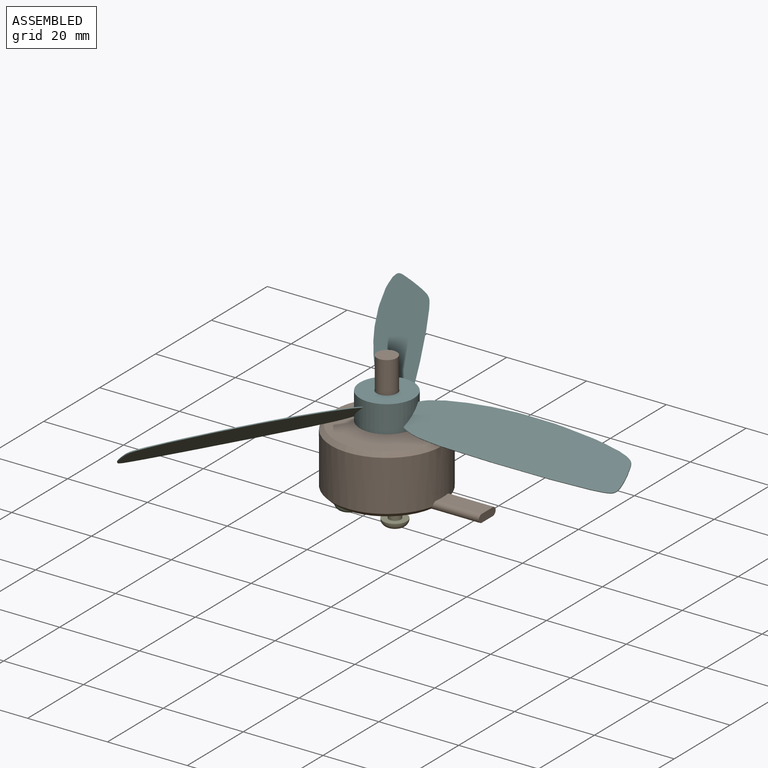
[diagram: assembled view]
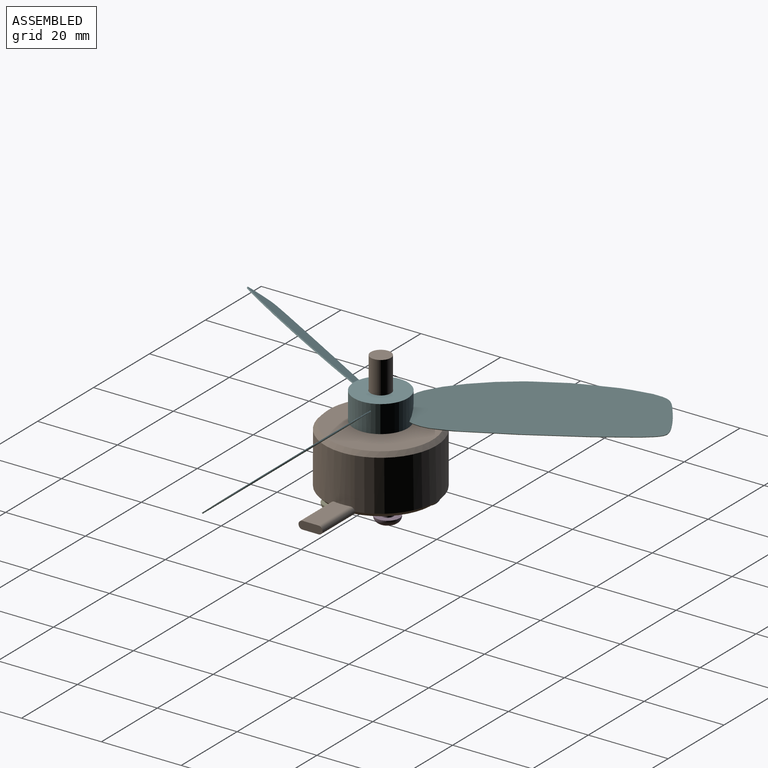
[diagram: assembled view, second angle]
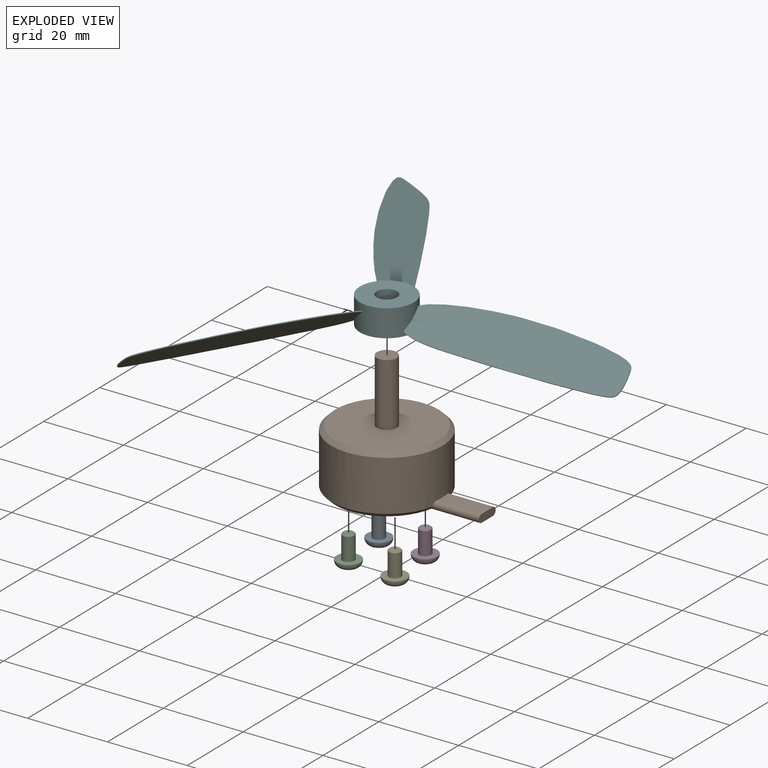
[diagram: exploded view]
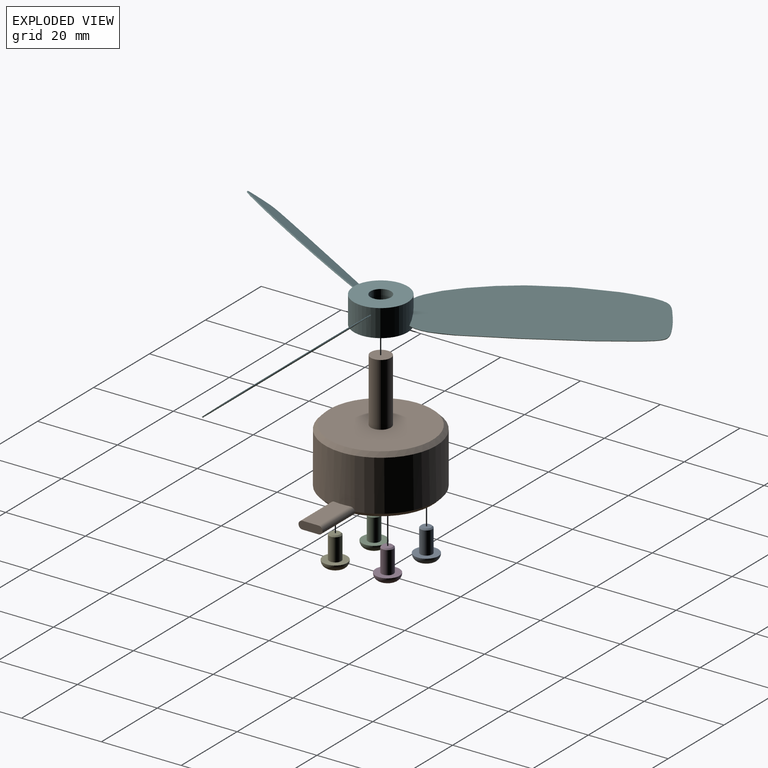
[diagram: exploded view, second angle]
ASSEMBLY  parts=6 mates=5
PART A: 21 faces, bbox 7.7x6x6 mm
  f0: torus R=1.38mm, axis (-1,0,0), area 38.6mm2, adj f1,f20
  f1: cylinder r=3mm len=6mm, axis (-1,0,0), area 1.5mm2, adj f0,f19
  f2: cylinder r=1.5mm len=5.69mm, axis (-1,0,0), area 53.7mm2, adj f3,f19
  f3: cone r=1.35mm half-angle=45deg, axis (-1,0,0), area 3.7mm2, adj f2,f18
  f4: cylinder r=1mm len=2mm, axis (-1,0,0), area 0.1mm2, adj f5,f11,f12,f13,f14,f15,f16
  f5: cone r=0.5mm half-angle=60deg, axis (-1,0,0), area 3.6mm2, adj f4
  f6: plane 1.15x1.11mm, normal (0,0,1), area 1.3mm2, adj f7,f8,f13,f14,f20
  f7: plane 1.11x1mm, normal (0,-0.87,0.5), area 1.3mm2, adj f6,f9,f12,f13,f20
  f8: plane 1.11x1mm, normal (0,0.87,0.5), area 1.3mm2, adj f6,f10,f14,f15,f20
  f9: plane 1.11x1mm, normal (0,-0.87,-0.5), area 1.3mm2, adj f7,f11,f12,f17,f20
  f10: plane 1.11x1mm, normal (0,0.87,-0.5), area 1.3mm2, adj f8,f15,f16,f17,f20
  f11: plane 0.87x0.5mm, normal (-1,0,0), area 0.1mm2, adj f4,f9,f17
  f12: plane 1x0.29mm, normal (-1,0,0), area 0.1mm2, adj f4,f7,f9
  f13: plane 0.87x0.5mm, normal (-1,0,0), area 0.1mm2, adj f4,f6,f7
  f14: plane 0.87x0.5mm, normal (-1,0,0), area 0.1mm2, adj f4,f6,f8
  f15: plane 1x0.29mm, normal (-1,0,0), area 0.1mm2, adj f4,f8,f10
  f16: plane 0.87x0.5mm, normal (-1,0,0), area 0.1mm2, adj f4,f10,f17
  f17: plane 1.15x1.11mm, normal (0,0,-1), area 1.3mm2, adj f9,f10,f11,f16,f20
  f18: plane 2.39x2.39mm, normal (1,0,0), area 4.5mm2, adj f3
  f19: plane 6x6mm, normal (1,0,0), area 21.2mm2, adj f1,f2
  f20: plane 2.76x2.76mm, normal (-1,0,0), area 2.5mm2, adj f0,f6,f7,f8,f9,f10,f17
PART B: 21 faces, bbox 39.1x27.9x33.5 mm
  f0: cylinder r=13.95mm len=27.9mm, axis (0,0,-1), area 1107.6mm2, adj f16,f17,f18,f19,f20
  f1: plane 38.1x25.9mm, normal (0,0,-1), area 528mm2, adj f3,f5,f7,f9,f13,f15,f17,f19
  f2: plane 25.9x25.9mm, normal (0,0,1), area 507.2mm2, adj f12,f18
  f3: cylinder r=1.5mm len=6mm, axis (0,0,-1), area 56.5mm2, adj f1,f4
  f4: plane 3x3mm, normal (0,0,-1), area 7.1mm2, adj f3
  f5: cylinder r=1.5mm len=6mm, axis (0,0,-1), area 56.5mm2, adj f1,f6
  f6: plane 3x3mm, normal (0,0,-1), area 7.1mm2, adj f5
  f7: cylinder r=1.5mm len=6mm, axis (0,0,-1), area 56.5mm2, adj f1,f8
  f8: plane 3x3mm, normal (0,0,-1), area 7.1mm2, adj f7
  f9: cylinder r=1.5mm len=6mm, axis (0,0,-1), area 56.5mm2, adj f1,f10
  f10: plane 3x3mm, normal (0,0,-1), area 7.1mm2, adj f9
  f11: plane 5x5mm, normal (0,0,1), area 19.6mm2, adj f12
  f12: cylinder r=2.5mm len=15.8mm, axis (0,0,-1), area 248.2mm2, adj f2,f11
  f13: cylinder r=2.5mm len=5mm, axis (0,0,-1), area 47.1mm2, adj f1,f14
  f14: plane 5x5mm, normal (0,0,-1), area 19.6mm2, adj f13
  f15: plane 6x2mm, normal (1,0,0), area 11.1mm2, adj f1,f16,f19,f20
  f16: plane 11.35x4mm, normal (0,0,1), area 45mm2, adj f0,f15,f19,f20
  f17: cone r=13.95mm half-angle=45deg, axis (0,0,1), area 111.6mm2, adj f0,f1,f19,f20
  f18: cone r=12.95mm half-angle=45deg, axis (0,0,-1), area 119.5mm2, adj f0,f2
  f19: cylinder r=1mm len=12.37mm, axis (-1,0,0), area 37mm2, adj f0,f1,f15,f16,f17
  f20: cylinder r=1mm len=12.37mm, axis (1,0,0), area 37mm2, adj f0,f1,f15,f16,f17
PART C: same geometry as A
PART D: same geometry as A
PART E: same geometry as A
PART F: 13 faces, bbox 93.4x106.8x8.3 mm
  f0: cylinder r=2.56mm len=6.8mm, axis (0,0,-1), area 109.4mm2, adj f2,f3
  f1: cylinder r=6.75mm len=13.5mm, axis (0,0,-1), area 283.6mm2, adj f2,f3,f4,f5,f6,f7,f8,f9
  f2: plane 13.5x13.5mm, normal (0,0,1), area 122.6mm2, adj f0,f1
  f3: plane 13.5x13.5mm, normal (0,0,-1), area 122.6mm2, adj f0,f1
  f4: extruded ~48.87x31mm, area 28.8mm2, adj f1,f5,f6
  f5: plane 49.88x31.78mm, normal (-0.56,0.32,0.77), area 580.1mm2, adj f1,f4
  f6: plane 49.88x31.78mm, normal (0.56,-0.32,-0.77), area 580mm2, adj f1,f4
  f7: extruded ~48.67x31.35mm, area 28.8mm2, adj f1,f8,f9
  f8: plane 50.3x32.08mm, normal (0.56,0.32,0.77), area 580.1mm2, adj f1,f7
  f9: plane 50.3x32.08mm, normal (-0.56,-0.32,-0.77), area 580mm2, adj f1,f7
  f10: extruded ~54.03x9.44mm, area 28.8mm2, adj f1,f11,f12
  f11: plane 55.43x9.65mm, normal (0,-0.64,0.77), area 580.1mm2, adj f1,f10
  f12: plane 55.35x9.63mm, normal (0,0.64,-0.77), area 580mm2, adj f1,f10
PLACE A rot(axis=(0,-1,0),90deg) t=(-6.72,6.72,-3.7)mm
PLACE B at identity
PLACE C rot(axis=(0,-1,0),90deg) t=(-5.66,-5.66,-3.7)mm
PLACE D rot(axis=(0,-1,0),90deg) t=(5.66,5.66,-3.7)mm
PLACE E rot(axis=(0,-1,0),90deg) t=(6.72,-6.72,-3.7)mm
PLACE F t=(0,0,15.7)mm
MATE fastened E.f0 <-> B.f7  axis (0,0,1) through (6.72,-6.72,-2)mm
MATE fastened A.f0 <-> B.f3  axis (0,0,1) through (-6.72,6.72,-2)mm
MATE fastened D.f0 <-> B.f5  axis (0,0,1) through (5.66,5.66,-2)mm
MATE fastened C.f0 <-> B.f9  axis (0,0,1) through (-5.66,-5.66,-2)mm
MATE fastened F.f0 <-> B.f0  axis (0,0,-1) through (0,0,15.7)mm
